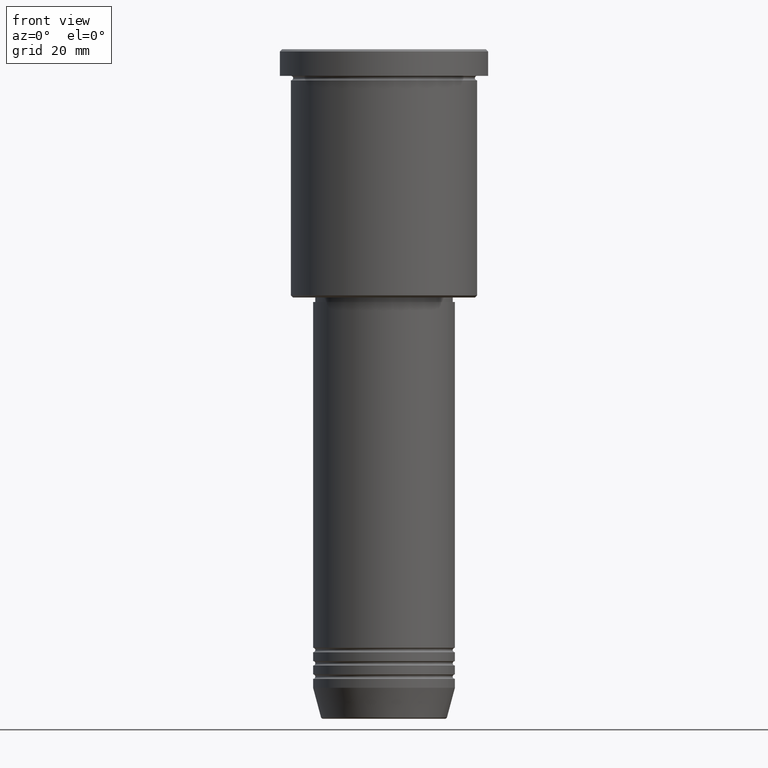
[diagram: clean part render]
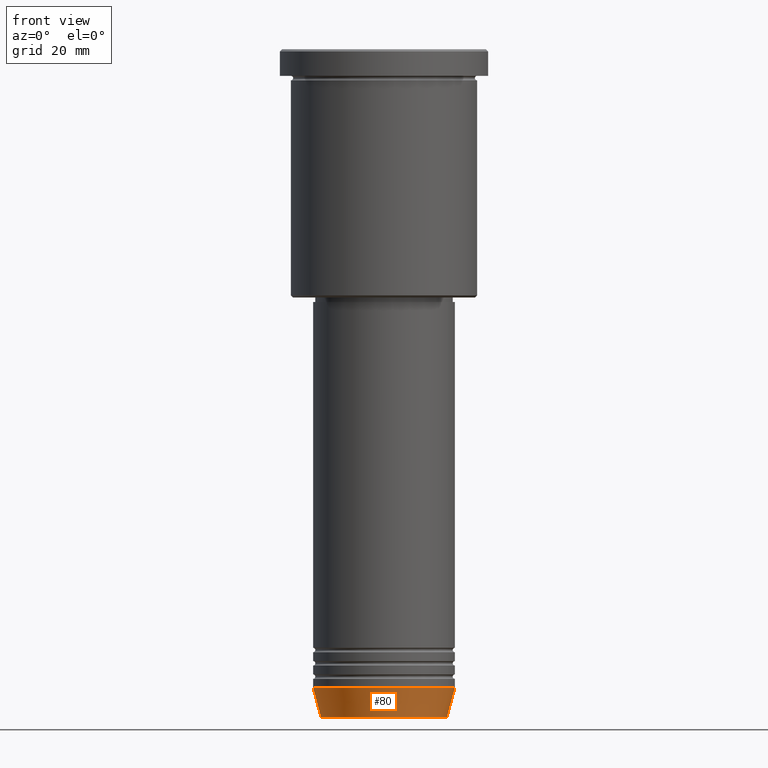
[diagram: same view with one face highlighted and labeled with its STEP entity id]
A machine part, front view. The second image highlights one B-rep face of the part: STEP entity #80.
In plain terms, the highlighted conical surface has half-angle 15 deg.
Its self-contained STEP definition (entity closure, byte-faithful):
#54 = FACE_OUTER_BOUND ( 'NONE', #614, .T. ) ;
#59 = EDGE_CURVE ( 'NONE', #485, #412, #829, .T. ) ;
#80 = ADVANCED_FACE ( 'NONE', ( #54 ), #318, .T. ) ;
#105 = LINE ( 'NONE', #749, #469 ) ;
#124 = AXIS2_PLACEMENT_3D ( 'NONE', #891, #316, #729 ) ;
#144 = DIRECTION ( 'NONE',  ( 1.000000000000000000, 0.000000000000000000, 0.000000000000000000 ) ) ;
#184 = VECTOR ( 'NONE', #1079, 1000.000000000000000 ) ;
#186 = CARTESIAN_POINT ( 'NONE',  ( 16.00000000000000000, 0.000000000000000000, -144.0000000000000284 ) ) ;
#205 = VERTEX_POINT ( 'NONE', #957 ) ;
#208 = CARTESIAN_POINT ( 'NONE',  ( -16.00000000000000000, 1.959434878635765131E-15, -144.0000000000000284 ) ) ;
#316 = DIRECTION ( 'NONE',  ( -0.000000000000000000, -0.000000000000000000, 1.000000000000000000 ) ) ;
#318 = CONICAL_SURFACE ( 'NONE', #565, 16.00000000000000000, 0.2617993877991495744 ) ;
#387 = ORIENTED_EDGE ( 'NONE', *, *, #803, .T. ) ;
#402 = CARTESIAN_POINT ( 'NONE',  ( 14.22365507213719305, 0.000000000000000000, -150.6294095225512706 ) ) ;
#410 = DIRECTION ( 'NONE',  ( -0.000000000000000000, -0.000000000000000000, 1.000000000000000000 ) ) ;
#412 = VERTEX_POINT ( 'NONE', #186 ) ;
#455 = ORIENTED_EDGE ( 'NONE', *, *, #59, .F. ) ;
#469 = VECTOR ( 'NONE', #1183, 1000.000000000000000 ) ;
#485 = VERTEX_POINT ( 'NONE', #208 ) ;
#506 = CARTESIAN_POINT ( 'NONE',  ( 0.000000000000000000, 0.000000000000000000, -144.0000000000000284 ) ) ;
#518 = VERTEX_POINT ( 'NONE', #402 ) ;
#519 = CARTESIAN_POINT ( 'NONE',  ( 0.000000000000000000, 0.000000000000000000, -144.0000000000000284 ) ) ;
#559 = ORIENTED_EDGE ( 'NONE', *, *, #774, .T. ) ;
#565 = AXIS2_PLACEMENT_3D ( 'NONE', #519, #410, #144 ) ;
#614 = EDGE_LOOP ( 'NONE', ( #766, #387, #559, #455 ) ) ;
#645 = CIRCLE ( 'NONE', #124, 14.22365507213719305 ) ;
#729 = DIRECTION ( 'NONE',  ( 1.000000000000000000, 0.000000000000000000, 0.000000000000000000 ) ) ;
#749 = CARTESIAN_POINT ( 'NONE',  ( -16.00000000000000000, 1.959434878635765131E-15, -144.0000000000000284 ) ) ;
#766 = ORIENTED_EDGE ( 'NONE', *, *, #1110, .F. ) ;
#774 = EDGE_CURVE ( 'NONE', #518, #412, #792, .T. ) ;
#792 = LINE ( 'NONE', #1154, #184 ) ;
#803 = EDGE_CURVE ( 'NONE', #205, #518, #645, .T. ) ;
#829 = CIRCLE ( 'NONE', #949, 16.00000000000000000 ) ;
#891 = CARTESIAN_POINT ( 'NONE',  ( 0.000000000000000000, 0.000000000000000000, -150.6294095225512706 ) ) ;
#949 = AXIS2_PLACEMENT_3D ( 'NONE', #506, #973, #1063 ) ;
#957 = CARTESIAN_POINT ( 'NONE',  ( -14.22365507213719305, 1.850665122131324126E-15, -150.6294095225512706 ) ) ;
#973 = DIRECTION ( 'NONE',  ( -0.000000000000000000, -0.000000000000000000, 1.000000000000000000 ) ) ;
#1063 = DIRECTION ( 'NONE',  ( 1.000000000000000000, 0.000000000000000000, 0.000000000000000000 ) ) ;
#1079 = DIRECTION ( 'NONE',  ( 0.2588190451025209060, 0.000000000000000000, 0.9659258262890682012 ) ) ;
#1110 = EDGE_CURVE ( 'NONE', #205, #485, #105, .T. ) ;
#1154 = CARTESIAN_POINT ( 'NONE',  ( 16.00000000000000000, 0.000000000000000000, -144.0000000000000284 ) ) ;
#1183 = DIRECTION ( 'NONE',  ( -0.2588190451025209060, 3.169619151431766790E-17, 0.9659258262890682012 ) ) ;